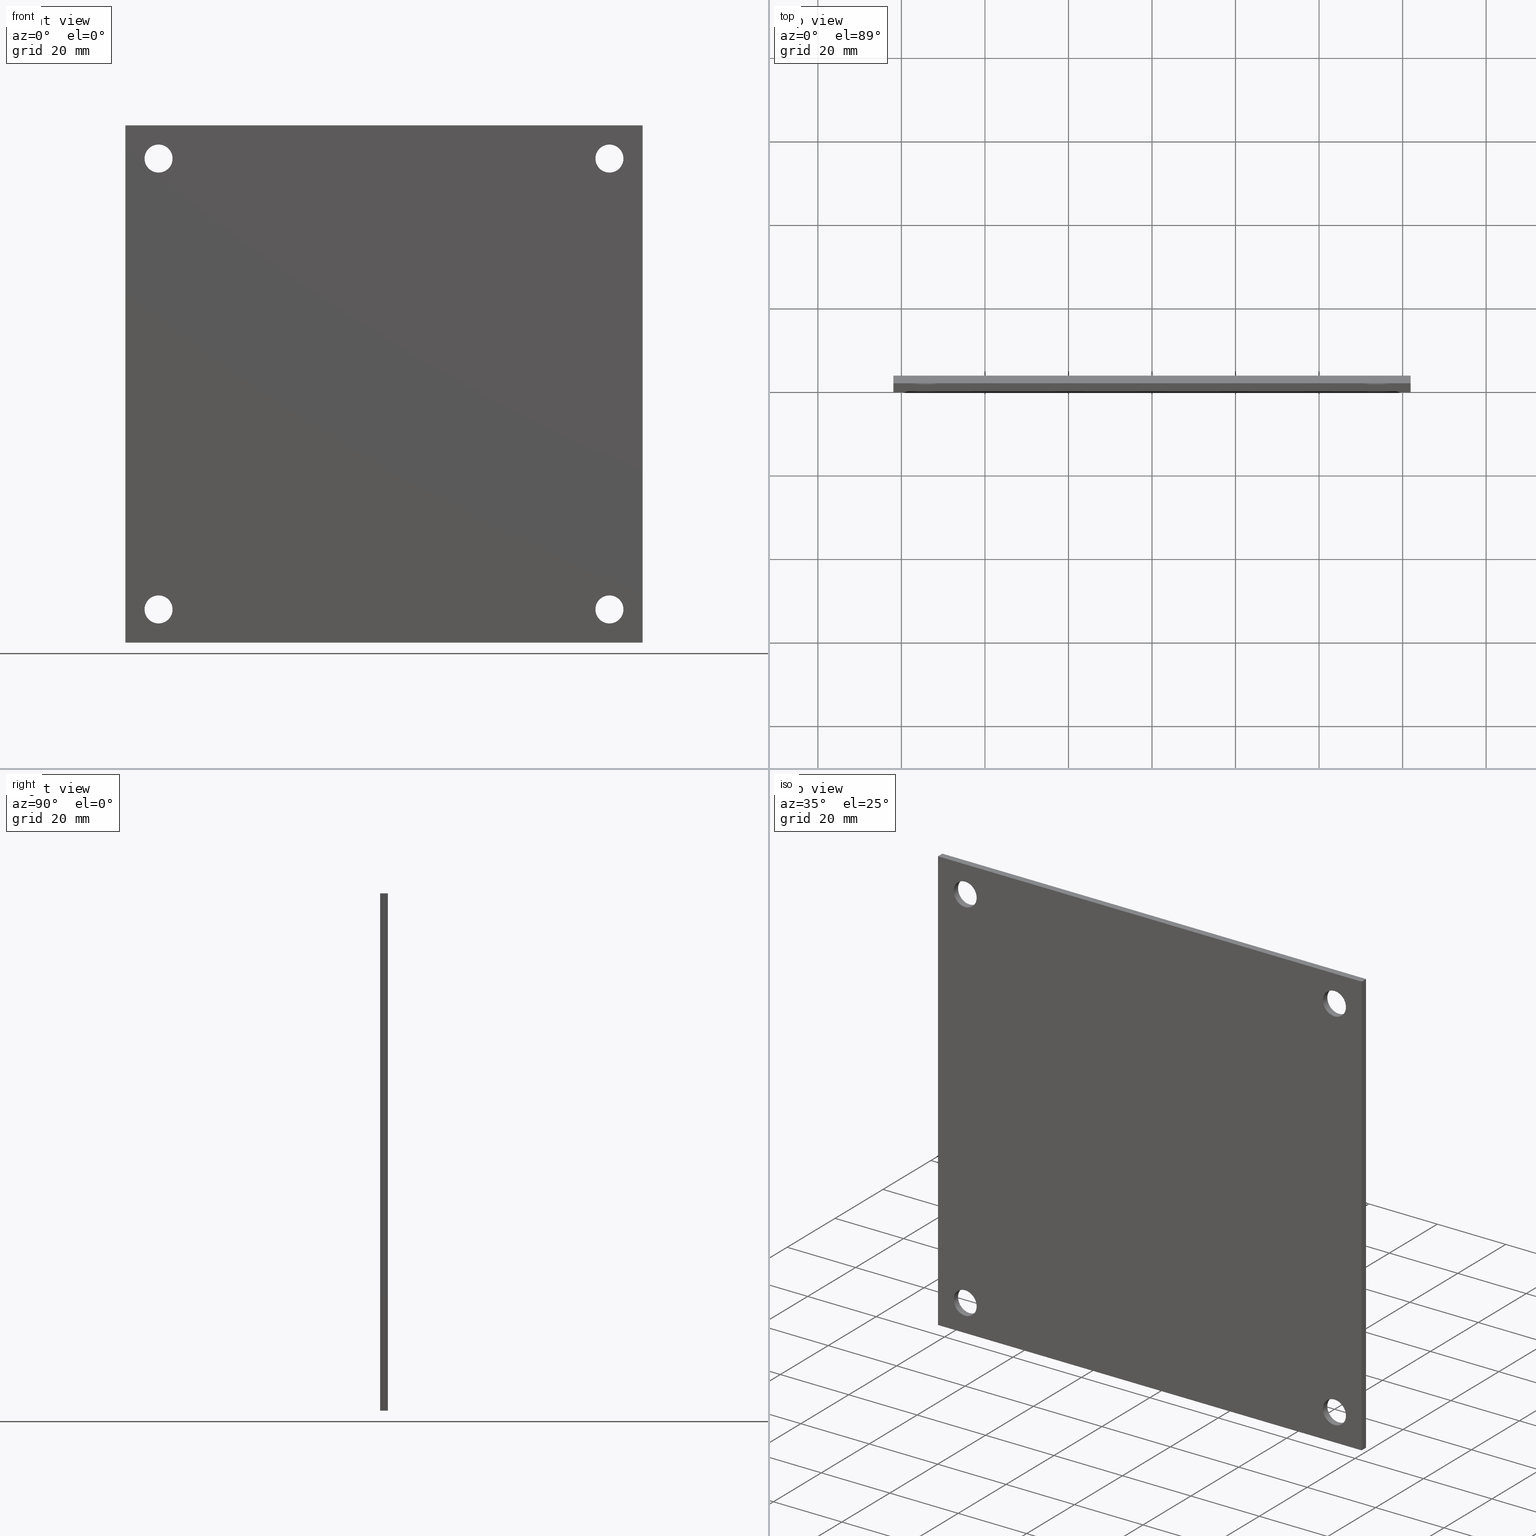
[diagram: canonical four-view strip — front | top / right | iso, engineering-drawing reading convention]
A machine part, canonical four-view strip (front | top / right | iso — engineering-drawing reading convention). The complete STEP part file that produces these views, byte-faithful:
ISO-10303-21;
HEADER;
FILE_DESCRIPTION (( 'STEP AP214' ),
    '1' );
FILE_NAME ('14A0505.STEP',
    '2019-08-15T21:08:36',
    ( '' ),
    ( '' ),
    'SwSTEP 2.0',
    'SolidWorks 2018',
    '' );
FILE_SCHEMA (( 'AUTOMOTIVE_DESIGN' ));
ENDSEC;

DATA;
#1 = STYLED_ITEM ( 'NONE', ( #421 ), #239 ) ;
#2 = FILL_AREA_STYLE ('',( #245 ) ) ;
#3 = DIMENSIONAL_EXPONENTS ( 1.000000000000000000, 0.0000000000000000000, 0.0000000000000000000, 0.0000000000000000000, 0.0000000000000000000, 0.0000000000000000000, 0.0000000000000000000 ) ;
#4 = LENGTH_MEASURE_WITH_UNIT ( LENGTH_MEASURE( 0.02539999999999999897 ), #138 );
#5 = LENGTH_MEASURE_WITH_UNIT ( LENGTH_MEASURE( 0.02539999999999999897 ), #326 );
#6 = ORIENTED_EDGE ( 'NONE', *, *, #110, .F. ) ;
#7 = CARTESIAN_POINT ( 'NONE',  ( 2.437500000000000000, 0.07200000000000000844, 2.437500000000000000 ) ) ;
#8 =( GEOMETRIC_REPRESENTATION_CONTEXT ( 3 ) GLOBAL_UNCERTAINTY_ASSIGNED_CONTEXT ( ( #154 ) ) GLOBAL_UNIT_ASSIGNED_CONTEXT ( ( #99, #55, #459 ) ) REPRESENTATION_CONTEXT ( 'NONE', 'WORKASPACE' ) );
#9 = SURFACE_STYLE_USAGE ( .BOTH. , #453 ) ;
#10 = FACE_BOUND ( 'NONE', #150, .T. ) ;
#11 = ORIENTED_EDGE ( 'NONE', *, *, #414, .T. ) ;
#12 =( GEOMETRIC_REPRESENTATION_CONTEXT ( 3 ) GLOBAL_UNCERTAINTY_ASSIGNED_CONTEXT ( ( #54 ) ) GLOBAL_UNIT_ASSIGNED_CONTEXT ( ( #419, #101, #502 ) ) REPRESENTATION_CONTEXT ( 'NONE', 'WORKASPACE' ) );
#13 = DIRECTION ( 'NONE',  ( -0.0000000000000000000, -0.0000000000000000000, -1.000000000000000000 ) ) ;
#14 = EDGE_CURVE ( 'NONE', #444, #444, #276, .T. ) ;
#15 = FACE_BOUND ( 'NONE', #131, .T. ) ;
#16 = SURFACE_STYLE_USAGE ( .BOTH. , #139 ) ;
#17 = ORIENTED_EDGE ( 'NONE', *, *, #110, .T. ) ;
#18 = FILL_AREA_STYLE ('',( #296 ) ) ;
#19 = PRODUCT_DEFINITION_SHAPE ( 'NONE', 'NONE',  #386 ) ;
#20 = DIRECTION ( 'NONE',  ( 0.0000000000000000000, 0.0000000000000000000, 1.000000000000000000 ) ) ;
#21 = SHAPE_DEFINITION_REPRESENTATION ( #19, #175 ) ;
#22 =( CONVERSION_BASED_UNIT ( 'INCH', #310 ) LENGTH_UNIT ( ) NAMED_UNIT ( #527 ) );
#23 = PRODUCT_RELATED_PRODUCT_CATEGORY ( 'part', '', ( #47 ) ) ;
#24 = CARTESIAN_POINT ( 'NONE',  ( -2.125000000000000000, 0.07199999999999967537, -2.125000000000000000 ) ) ;
#25 = EDGE_CURVE ( 'NONE', #456, #456, #75, .T. ) ;
#26 = DIRECTION ( 'NONE',  ( 0.0000000000000000000, 0.0000000000000000000, 1.000000000000000000 ) ) ;
#27 = FILL_AREA_STYLE_COLOUR ( '', #234 ) ;
#28 =( GEOMETRIC_REPRESENTATION_CONTEXT ( 3 ) GLOBAL_UNCERTAINTY_ASSIGNED_CONTEXT ( ( #332 ) ) GLOBAL_UNIT_ASSIGNED_CONTEXT ( ( #448, #248, #251 ) ) REPRESENTATION_CONTEXT ( 'NONE', 'WORKASPACE' ) );
#29 = ORIENTED_EDGE ( 'NONE', *, *, #225, .F. ) ;
#30 = DIRECTION ( 'NONE',  ( 0.0000000000000000000, -1.000000000000000000, 0.0000000000000000000 ) ) ;
#31 = AXIS2_PLACEMENT_3D ( 'NONE', #509, #153, #26 ) ;
#32 = PRODUCT_CONTEXT ( 'NONE', #396, 'mechanical' ) ;
#33 = VECTOR ( 'NONE', #426, 39.37007874015748143 ) ;
#34 = DIMENSIONAL_EXPONENTS ( 1.000000000000000000, 0.0000000000000000000, 0.0000000000000000000, 0.0000000000000000000, 0.0000000000000000000, 0.0000000000000000000, 0.0000000000000000000 ) ;
#35 = EDGE_CURVE ( 'NONE', #79, #79, #363, .T. ) ;
#36 = PRESENTATION_STYLE_ASSIGNMENT (( #137 ) ) ;
#37 = COLOUR_RGB ( '',0.7921568627450980005, 0.8196078431372548767, 0.9333333333333333481 ) ;
#38 = ORIENTED_EDGE ( 'NONE', *, *, #190, .T. ) ;
#39 =( NAMED_UNIT ( * ) SI_UNIT ( $, .STERADIAN. ) SOLID_ANGLE_UNIT ( ) );
#40 = AXIS2_PLACEMENT_3D ( 'NONE', #179, #505, #20 ) ;
#41 = DIMENSIONAL_EXPONENTS ( 1.000000000000000000, 0.0000000000000000000, 0.0000000000000000000, 0.0000000000000000000, 0.0000000000000000000, 0.0000000000000000000, 0.0000000000000000000 ) ;
#42 = FACE_BOUND ( 'NONE', #164, .T. ) ;
#43 = SURFACE_STYLE_FILL_AREA ( #218 ) ;
#44 = CARTESIAN_POINT ( 'NONE',  ( 2.437500000000000000, 0.07200000000000000844, -2.437500000000000444 ) ) ;
#45 = EDGE_LOOP ( 'NONE', ( #189 ) ) ;
#46 = FILL_AREA_STYLE_COLOUR ( '', #372 ) ;
#47 = PRODUCT ( '14A0505', '14A0505', '', ( #32 ) ) ;
#48 = FACE_OUTER_BOUND ( 'NONE', #163, .T. ) ;
#49 = ORIENTED_EDGE ( 'NONE', *, *, #368, .F. ) ;
#50 = ORIENTED_EDGE ( 'NONE', *, *, #70, .F. ) ;
#51 = DIRECTION ( 'NONE',  ( -0.0000000000000000000, 1.000000000000000000, -0.0000000000000000000 ) ) ;
#52 = CARTESIAN_POINT ( 'NONE',  ( -2.125000000000000000, 0.0000000000000000000, -2.125000000000000000 ) ) ;
#53 = EDGE_CURVE ( 'NONE', #478, #478, #321, .T. ) ;
#54 = UNCERTAINTY_MEASURE_WITH_UNIT (LENGTH_MEASURE( 1.000000000000000082E-05 ), #419, 'distance_accuracy_value', 'NONE');
#55 =( NAMED_UNIT ( * ) PLANE_ANGLE_UNIT ( ) SI_UNIT ( $, .RADIAN. ) );
#56 = LENGTH_MEASURE_WITH_UNIT ( LENGTH_MEASURE( 0.02539999999999999897 ), #337 );
#57 = CARTESIAN_POINT ( 'NONE',  ( -2.437500000000000000, 0.07200000000000000844, -2.437500000000000000 ) ) ;
#58 = MECHANICAL_DESIGN_GEOMETRIC_PRESENTATION_REPRESENTATION (  '', ( #184 ), #518 ) ;
#59 = CARTESIAN_POINT ( 'NONE',  ( 2.437500000000000000, 0.0000000000000000000, 2.437500000000000000 ) ) ;
#60 = FACE_OUTER_BOUND ( 'NONE', #458, .T. ) ;
#61 = PLANE ( 'NONE',  #180 ) ;
#62 = VERTEX_POINT ( 'NONE', #473 ) ;
#63 = DIRECTION ( 'NONE',  ( -0.0000000000000000000, 1.000000000000000000, -0.0000000000000000000 ) ) ;
#64 = MECHANICAL_DESIGN_GEOMETRIC_PRESENTATION_REPRESENTATION (  '', ( #196 ), #503 ) ;
#65 = FACE_BOUND ( 'NONE', #498, .T. ) ;
#66 = VERTEX_POINT ( 'NONE', #69 ) ;
#67 = EDGE_LOOP ( 'NONE', ( #83, #182, #201, #492 ) ) ;
#68 = CARTESIAN_POINT ( 'NONE',  ( -2.125000000000000000, 6.894667069554566652, -2.125000000000000000 ) ) ;
#69 = CARTESIAN_POINT ( 'NONE',  ( 2.437500000000000000, 0.07200000000000000844, 2.437500000000000000 ) ) ;
#70 = EDGE_CURVE ( 'NONE', #322, #151, #250, .T. ) ;
#71 = CARTESIAN_POINT ( 'NONE',  ( 2.125000000000000000, 6.894667069554566652, 2.125000000000000000 ) ) ;
#72 = VERTEX_POINT ( 'NONE', #520 ) ;
#73 = LINE ( 'NONE', #327, #258 ) ;
#74 = CARTESIAN_POINT ( 'NONE',  ( 2.125000000000000000, 0.0000000000000000000, 2.125000000000000000 ) ) ;
#75 = CIRCLE ( 'NONE', #481, 0.1325000000000000344 ) ;
#76 = ADVANCED_FACE ( 'NONE', ( #440, #158 ), #227, .F. ) ;
#77 = UNCERTAINTY_MEASURE_WITH_UNIT (LENGTH_MEASURE( 1.000000000000000082E-05 ), #413, 'distance_accuracy_value', 'NONE');
#78 = PRESENTATION_LAYER_ASSIGNMENT (  '', '', ( #483 ) ) ;
#79 = VERTEX_POINT ( 'NONE', #343 ) ;
#80 = FACE_OUTER_BOUND ( 'NONE', #236, .T. ) ;
#81 = LENGTH_MEASURE_WITH_UNIT ( LENGTH_MEASURE( 0.02539999999999999897 ), #417 );
#82 = ADVANCED_FACE ( 'NONE', ( #103, #60 ), #125, .F. ) ;
#83 = ORIENTED_EDGE ( 'NONE', *, *, #199, .T. ) ;
#84 = SURFACE_SIDE_STYLE ('',( #452 ) ) ;
#85 = CARTESIAN_POINT ( 'NONE',  ( 2.437500000000000000, 0.0000000000000000000, -2.437500000000000000 ) ) ;
#86 = DIMENSIONAL_EXPONENTS ( 1.000000000000000000, 0.0000000000000000000, 0.0000000000000000000, 0.0000000000000000000, 0.0000000000000000000, 0.0000000000000000000, 0.0000000000000000000 ) ;
#87 = AXIS2_PLACEMENT_3D ( 'NONE', #7, #176, #210 ) ;
#88 = DIRECTION ( 'NONE',  ( 0.0000000000000000000, -0.0000000000000000000, -1.000000000000000000 ) ) ;
#89 = CARTESIAN_POINT ( 'NONE',  ( 2.437500000000000000, 0.07200000000000000844, 2.437500000000000000 ) ) ;
#90 = LINE ( 'NONE', #85, #371 ) ;
#91 =( GEOMETRIC_REPRESENTATION_CONTEXT ( 3 ) GLOBAL_UNCERTAINTY_ASSIGNED_CONTEXT ( ( #112 ) ) GLOBAL_UNIT_ASSIGNED_CONTEXT ( ( #347, #111, #390 ) ) REPRESENTATION_CONTEXT ( 'NONE', 'WORKASPACE' ) );
#92 = DIRECTION ( 'NONE',  ( -1.120758151246879986E-16, 0.0000000000000000000, -1.000000000000000000 ) ) ;
#93 = CARTESIAN_POINT ( 'NONE',  ( -2.437500000000000000, 0.07200000000000000844, 2.437500000000000000 ) ) ;
#94 = CARTESIAN_POINT ( 'NONE',  ( -2.437500000000000000, 0.0000000000000000000, -2.437500000000000000 ) ) ;
#95 = VECTOR ( 'NONE', #177, 39.37007874015748143 ) ;
#96 = CARTESIAN_POINT ( 'NONE',  ( -2.125000000000000000, 6.894667069554566652, 2.125000000000000000 ) ) ;
#97 = EDGE_LOOP ( 'NONE', ( #469 ) ) ;
#98 = DIRECTION ( 'NONE',  ( -0.0000000000000000000, 1.000000000000000000, -0.0000000000000000000 ) ) ;
#99 =( CONVERSION_BASED_UNIT ( 'INCH', #56 ) LENGTH_UNIT ( ) NAMED_UNIT ( #41 ) );
#100 =( GEOMETRIC_REPRESENTATION_CONTEXT ( 3 ) GLOBAL_UNCERTAINTY_ASSIGNED_CONTEXT ( ( #425 ) ) GLOBAL_UNIT_ASSIGNED_CONTEXT ( ( #359, #168, #403 ) ) REPRESENTATION_CONTEXT ( 'NONE', 'WORKASPACE' ) );
#101 =( NAMED_UNIT ( * ) PLANE_ANGLE_UNIT ( ) SI_UNIT ( $, .RADIAN. ) );
#102 = FACE_OUTER_BOUND ( 'NONE', #407, .T. ) ;
#103 = FACE_OUTER_BOUND ( 'NONE', #466, .T. ) ;
#104 = CARTESIAN_POINT ( 'NONE',  ( -2.437500000000000000, 0.07200000000000000844, 2.437499999999999556 ) ) ;
#105 =( NAMED_UNIT ( * ) SI_UNIT ( $, .STERADIAN. ) SOLID_ANGLE_UNIT ( ) );
#106 =( LENGTH_UNIT ( ) NAMED_UNIT ( * ) SI_UNIT ( $, .METRE. ) );
#107 = STYLED_ITEM ( 'NONE', ( #522 ), #519 ) ;
#108 = CIRCLE ( 'NONE', #31, 0.1325000000000000344 ) ;
#109 =( CONVERSION_BASED_UNIT ( 'INCH', #318 ) LENGTH_UNIT ( ) NAMED_UNIT ( #123 ) );
#110 = EDGE_CURVE ( 'NONE', #485, #322, #515, .T. ) ;
#111 =( NAMED_UNIT ( * ) PLANE_ANGLE_UNIT ( ) SI_UNIT ( $, .RADIAN. ) );
#112 = UNCERTAINTY_MEASURE_WITH_UNIT (LENGTH_MEASURE( 1.000000000000000082E-05 ), #347, 'distance_accuracy_value', 'NONE');
#113 = CARTESIAN_POINT ( 'NONE',  ( 0.0000000000000000000, 0.0000000000000000000, 0.0000000000000000000 ) ) ;
#114 = APPLICATION_PROTOCOL_DEFINITION ( 'draft international standard', 'automotive_design', 1998, #396 ) ;
#115 =( GEOMETRIC_REPRESENTATION_CONTEXT ( 3 ) GLOBAL_UNCERTAINTY_ASSIGNED_CONTEXT ( ( #224 ) ) GLOBAL_UNIT_ASSIGNED_CONTEXT ( ( #455, #216, #499 ) ) REPRESENTATION_CONTEXT ( 'NONE', 'WORKASPACE' ) );
#116 = EDGE_LOOP ( 'NONE', ( #215 ) ) ;
#117 =( NAMED_UNIT ( * ) SI_UNIT ( $, .STERADIAN. ) SOLID_ANGLE_UNIT ( ) );
#118 = CARTESIAN_POINT ( 'NONE',  ( 2.125000000000000000, 0.07199999999999967537, -2.125000000000000000 ) ) ;
#119 = AXIS2_PLACEMENT_3D ( 'NONE', #52, #51, #172 ) ;
#120 = CARTESIAN_POINT ( 'NONE',  ( -2.125000000000000000, 0.07199999999999967537, 2.125000000000000000 ) ) ;
#121 = DIRECTION ( 'NONE',  ( 1.000000000000000000, 0.0000000000000000000, 0.0000000000000000000 ) ) ;
#122 = FACE_OUTER_BOUND ( 'NONE', #256, .T. ) ;
#123 = DIMENSIONAL_EXPONENTS ( 1.000000000000000000, 0.0000000000000000000, 0.0000000000000000000, 0.0000000000000000000, 0.0000000000000000000, 0.0000000000000000000, 0.0000000000000000000 ) ;
#124 = APPLICATION_CONTEXT ( 'automotive_design' ) ;
#125 = CYLINDRICAL_SURFACE ( 'NONE', #423, 0.1325000000000000344 ) ;
#126 =( LENGTH_UNIT ( ) NAMED_UNIT ( * ) SI_UNIT ( $, .METRE. ) );
#127 = DIMENSIONAL_EXPONENTS ( 1.000000000000000000, 0.0000000000000000000, 0.0000000000000000000, 0.0000000000000000000, 0.0000000000000000000, 0.0000000000000000000, 0.0000000000000000000 ) ;
#128 = PRESENTATION_LAYER_ASSIGNMENT (  '', '', ( #494 ) ) ;
#129 = ADVANCED_FACE ( 'NONE', ( #319 ), #489, .T. ) ;
#130 = AXIS2_PLACEMENT_3D ( 'NONE', #71, #268, #521 ) ;
#131 = EDGE_LOOP ( 'NONE', ( #441 ) ) ;
#132 = PLANE ( 'NONE',  #405 ) ;
#133 = PLANE ( 'NONE',  #87 ) ;
#134 = LENGTH_MEASURE_WITH_UNIT ( LENGTH_MEASURE( 0.02539999999999999897 ), #493 );
#135 = PRESENTATION_LAYER_ASSIGNMENT (  '', '', ( #355 ) ) ;
#136 = ORIENTED_EDGE ( 'NONE', *, *, #341, .F. ) ;
#137 = SURFACE_STYLE_USAGE ( .BOTH. , #293 ) ;
#138 =( LENGTH_UNIT ( ) NAMED_UNIT ( * ) SI_UNIT ( $, .METRE. ) );
#139 = SURFACE_SIDE_STYLE ('',( #290 ) ) ;
#140 = COLOUR_RGB ( '',0.7921568627450980005, 0.8196078431372548767, 0.9333333333333333481 ) ;
#141 = FACE_BOUND ( 'NONE', #191, .T. ) ;
#142 = LINE ( 'NONE', #490, #457 ) ;
#143 = CARTESIAN_POINT ( 'NONE',  ( -2.437500000000000000, 0.07200000000000000844, 2.437500000000000000 ) ) ;
#144 = UNCERTAINTY_MEASURE_WITH_UNIT (LENGTH_MEASURE( 1.000000000000000082E-05 ), #270, 'distance_accuracy_value', 'NONE');
#145 = FILL_AREA_STYLE ('',( #298 ) ) ;
#146 = MECHANICAL_DESIGN_GEOMETRIC_PRESENTATION_REPRESENTATION (  '', ( #483 ), #8 ) ;
#147 = CYLINDRICAL_SURFACE ( 'NONE', #395, 0.1325000000000000344 ) ;
#148 = SURFACE_STYLE_USAGE ( .BOTH. , #432 ) ;
#149 = LINE ( 'NONE', #381, #188 ) ;
#150 = EDGE_LOOP ( 'NONE', ( #181 ) ) ;
#151 = VERTEX_POINT ( 'NONE', #44 ) ;
#152 = DIRECTION ( 'NONE',  ( 0.0000000000000000000, -0.0000000000000000000, -1.000000000000000000 ) ) ;
#153 = DIRECTION ( 'NONE',  ( -0.0000000000000000000, 1.000000000000000000, -0.0000000000000000000 ) ) ;
#154 = UNCERTAINTY_MEASURE_WITH_UNIT (LENGTH_MEASURE( 1.000000000000000082E-05 ), #99, 'distance_accuracy_value', 'NONE');
#155 = MECHANICAL_DESIGN_GEOMETRIC_PRESENTATION_REPRESENTATION (  '', ( #494 ), #12 ) ;
#156 = LENGTH_MEASURE_WITH_UNIT ( LENGTH_MEASURE( 0.02539999999999999897 ), #235 );
#157 = DIRECTION ( 'NONE',  ( 0.0000000000000000000, 0.0000000000000000000, 1.000000000000000000 ) ) ;
#158 = FACE_OUTER_BOUND ( 'NONE', #283, .T. ) ;
#159 =( GEOMETRIC_REPRESENTATION_CONTEXT ( 3 ) GLOBAL_UNCERTAINTY_ASSIGNED_CONTEXT ( ( #349 ) ) GLOBAL_UNIT_ASSIGNED_CONTEXT ( ( #240, #203, #487 ) ) REPRESENTATION_CONTEXT ( 'NONE', 'WORKASPACE' ) );
#160 =( LENGTH_UNIT ( ) NAMED_UNIT ( * ) SI_UNIT ( $, .METRE. ) );
#161 =( NAMED_UNIT ( * ) PLANE_ANGLE_UNIT ( ) SI_UNIT ( $, .RADIAN. ) );
#162 = VECTOR ( 'NONE', #449, 39.37007874015748143 ) ;
#163 = EDGE_LOOP ( 'NONE', ( #504 ) ) ;
#164 = EDGE_LOOP ( 'NONE', ( #209 ) ) ;
#165 = CARTESIAN_POINT ( 'NONE',  ( -2.437500000000000000, 0.07200000000000000844, -2.437500000000000000 ) ) ;
#166 = STYLED_ITEM ( 'NONE', ( #36 ), #282 ) ;
#167 = COLOUR_RGB ( '',0.7921568627450980005, 0.8196078431372548767, 0.9333333333333333481 ) ;
#168 =( NAMED_UNIT ( * ) PLANE_ANGLE_UNIT ( ) SI_UNIT ( $, .RADIAN. ) );
#169 = DIMENSIONAL_EXPONENTS ( 1.000000000000000000, 0.0000000000000000000, 0.0000000000000000000, 0.0000000000000000000, 0.0000000000000000000, 0.0000000000000000000, 0.0000000000000000000 ) ;
#170 = ORIENTED_EDGE ( 'NONE', *, *, #278, .F. ) ;
#171 = EDGE_LOOP ( 'NONE', ( #284 ) ) ;
#172 = DIRECTION ( 'NONE',  ( 0.0000000000000000000, 0.0000000000000000000, 1.000000000000000000 ) ) ;
#173 = SURFACE_STYLE_FILL_AREA ( #374 ) ;
#174 = DIRECTION ( 'NONE',  ( -1.000000000000000000, 0.0000000000000000000, 1.120758151246879986E-16 ) ) ;
#175 = ADVANCED_BREP_SHAPE_REPRESENTATION ( '14A0505', ( #239, #329 ), #418 ) ;
#176 = DIRECTION ( 'NONE',  ( -1.120758151246879986E-16, 0.0000000000000000000, 1.000000000000000000 ) ) ;
#177 = DIRECTION ( 'NONE',  ( -1.000000000000000000, -0.0000000000000000000, -0.0000000000000000000 ) ) ;
#178 = VECTOR ( 'NONE', #301, 39.37007874015748143 ) ;
#179 = CARTESIAN_POINT ( 'NONE',  ( 2.125000000000000000, 0.0000000000000000000, -2.125000000000000000 ) ) ;
#180 = AXIS2_PLACEMENT_3D ( 'NONE', #428, #222, #307 ) ;
#181 = ORIENTED_EDGE ( 'NONE', *, *, #476, .T. ) ;
#182 = ORIENTED_EDGE ( 'NONE', *, *, #414, .F. ) ;
#183 = DIRECTION ( 'NONE',  ( 0.0000000000000000000, 0.0000000000000000000, -1.000000000000000000 ) ) ;
#184 = STYLED_ITEM ( 'NONE', ( #408 ), #129 ) ;
#185 =( LENGTH_UNIT ( ) NAMED_UNIT ( * ) SI_UNIT ( $, .METRE. ) );
#186 = MECHANICAL_DESIGN_GEOMETRIC_PRESENTATION_REPRESENTATION (  '', ( #166 ), #445 ) ;
#187 = DIRECTION ( 'NONE',  ( 0.0000000000000000000, 0.0000000000000000000, 1.000000000000000000 ) ) ;
#188 = VECTOR ( 'NONE', #13, 39.37007874015748143 ) ;
#189 = ORIENTED_EDGE ( 'NONE', *, *, #14, .T. ) ;
#190 = EDGE_CURVE ( 'NONE', #409, #352, #90, .T. ) ;
#191 = EDGE_LOOP ( 'NONE', ( #269 ) ) ;
#192 = CARTESIAN_POINT ( 'NONE',  ( -2.437500000000000000, 0.0000000000000000000, -2.437500000000000000 ) ) ;
#193 = DIRECTION ( 'NONE',  ( 0.0000000000000000000, -1.000000000000000000, 0.0000000000000000000 ) ) ;
#194 = DIRECTION ( 'NONE',  ( 0.0000000000000000000, -1.000000000000000000, 0.0000000000000000000 ) ) ;
#195 = FILL_AREA_STYLE ('',( #404 ) ) ;
#196 = STYLED_ITEM ( 'NONE', ( #389 ), #475 ) ;
#197 = DIMENSIONAL_EXPONENTS ( 1.000000000000000000, 0.0000000000000000000, 0.0000000000000000000, 0.0000000000000000000, 0.0000000000000000000, 0.0000000000000000000, 0.0000000000000000000 ) ;
#198 = DIRECTION ( 'NONE',  ( 0.0000000000000000000, 0.0000000000000000000, 1.000000000000000000 ) ) ;
#199 = EDGE_CURVE ( 'NONE', #151, #66, #73, .T. ) ;
#200 = FILL_AREA_STYLE ('',( #46 ) ) ;
#201 = ORIENTED_EDGE ( 'NONE', *, *, #190, .F. ) ;
#202 = DIMENSIONAL_EXPONENTS ( 1.000000000000000000, 0.0000000000000000000, 0.0000000000000000000, 0.0000000000000000000, 0.0000000000000000000, 0.0000000000000000000, 0.0000000000000000000 ) ;
#203 =( NAMED_UNIT ( * ) PLANE_ANGLE_UNIT ( ) SI_UNIT ( $, .RADIAN. ) );
#204 = CARTESIAN_POINT ( 'NONE',  ( 2.125000000000000000, 6.894667069554566652, -2.125000000000000000 ) ) ;
#205 = DIMENSIONAL_EXPONENTS ( 1.000000000000000000, 0.0000000000000000000, 0.0000000000000000000, 0.0000000000000000000, 0.0000000000000000000, 0.0000000000000000000, 0.0000000000000000000 ) ;
#206 = FACE_OUTER_BOUND ( 'NONE', #526, .T. ) ;
#207 = FACE_OUTER_BOUND ( 'NONE', #116, .T. ) ;
#208 = LINE ( 'NONE', #94, #162 ) ;
#209 = ORIENTED_EDGE ( 'NONE', *, *, #35, .T. ) ;
#210 = DIRECTION ( 'NONE',  ( 1.000000000000000000, 0.0000000000000000000, 1.120758151246879986E-16 ) ) ;
#211 = DIRECTION ( 'NONE',  ( -1.000000000000000000, -0.0000000000000000000, -1.120758151246879986E-16 ) ) ;
#212 = MECHANICAL_DESIGN_GEOMETRIC_PRESENTATION_REPRESENTATION (  '', ( #1 ), #28 ) ;
#213 = COLOUR_RGB ( '',0.7921568627450980005, 0.8196078431372548767, 0.9333333333333333481 ) ;
#214 =( NAMED_UNIT ( * ) PLANE_ANGLE_UNIT ( ) SI_UNIT ( $, .RADIAN. ) );
#215 = ORIENTED_EDGE ( 'NONE', *, *, #497, .F. ) ;
#216 =( NAMED_UNIT ( * ) PLANE_ANGLE_UNIT ( ) SI_UNIT ( $, .RADIAN. ) );
#217 = EDGE_CURVE ( 'NONE', #289, #289, #304, .T. ) ;
#218 = FILL_AREA_STYLE ('',( #340 ) ) ;
#219 = PLANE ( 'NONE',  #254 ) ;
#220 = ORIENTED_EDGE ( 'NONE', *, *, #199, .F. ) ;
#221 = SURFACE_SIDE_STYLE ('',( #461 ) ) ;
#222 = DIRECTION ( 'NONE',  ( 0.0000000000000000000, -1.000000000000000000, 0.0000000000000000000 ) ) ;
#223 = VERTEX_POINT ( 'NONE', #523 ) ;
#224 = UNCERTAINTY_MEASURE_WITH_UNIT (LENGTH_MEASURE( 1.000000000000000082E-05 ), #455, 'distance_accuracy_value', 'NONE');
#225 = EDGE_CURVE ( 'NONE', #485, #409, #208, .T. ) ;
#226 = SURFACE_STYLE_USAGE ( .BOTH. , #348 ) ;
#227 = CYLINDRICAL_SURFACE ( 'NONE', #130, 0.1325000000000000344 ) ;
#228 = DIRECTION ( 'NONE',  ( 0.0000000000000000000, -1.000000000000000000, 0.0000000000000000000 ) ) ;
#229 = CARTESIAN_POINT ( 'NONE',  ( 2.437500000000000000, 0.0000000000000000000, -2.437500000000000444 ) ) ;
#230 = MECHANICAL_DESIGN_GEOMETRIC_PRESENTATION_REPRESENTATION (  '', ( #355 ), #335 ) ;
#231 = DIRECTION ( 'NONE',  ( 0.0000000000000000000, -1.000000000000000000, 0.0000000000000000000 ) ) ;
#232 = MECHANICAL_DESIGN_GEOMETRIC_PRESENTATION_REPRESENTATION (  '', ( #511 ), #159 ) ;
#233 = VERTEX_POINT ( 'NONE', #93 ) ;
#234 = COLOUR_RGB ( '',0.7921568627450980005, 0.8196078431372548767, 0.9333333333333333481 ) ;
#235 =( LENGTH_UNIT ( ) NAMED_UNIT ( * ) SI_UNIT ( $, .METRE. ) );
#236 = EDGE_LOOP ( 'NONE', ( #306 ) ) ;
#237 = ORIENTED_EDGE ( 'NONE', *, *, #225, .T. ) ;
#238 = MECHANICAL_DESIGN_GEOMETRIC_PRESENTATION_REPRESENTATION (  '', ( #285 ), #115 ) ;
#239 = MANIFOLD_SOLID_BREP ( 'COM42864-1-solid1', #393 ) ;
#240 =( CONVERSION_BASED_UNIT ( 'INCH', #305 ) LENGTH_UNIT ( ) NAMED_UNIT ( #127 ) );
#241 = EDGE_CURVE ( 'NONE', #352, #437, #274, .T. ) ;
#242 = LENGTH_MEASURE_WITH_UNIT ( LENGTH_MEASURE( 0.02539999999999999897 ), #427 );
#243 = SURFACE_STYLE_FILL_AREA ( #2 ) ;
#244 = ORIENTED_EDGE ( 'NONE', *, *, #288, .F. ) ;
#245 = FILL_AREA_STYLE_COLOUR ( '', #415 ) ;
#246 =( LENGTH_UNIT ( ) NAMED_UNIT ( * ) SI_UNIT ( $, .METRE. ) );
#247 = MECHANICAL_DESIGN_GEOMETRIC_PRESENTATION_REPRESENTATION (  '', ( #501 ), #275 ) ;
#248 =( NAMED_UNIT ( * ) PLANE_ANGLE_UNIT ( ) SI_UNIT ( $, .RADIAN. ) );
#249 = SURFACE_STYLE_FILL_AREA ( #447 ) ;
#250 = LINE ( 'NONE', #392, #255 ) ;
#251 =( NAMED_UNIT ( * ) SI_UNIT ( $, .STERADIAN. ) SOLID_ANGLE_UNIT ( ) );
#252 = EDGE_CURVE ( 'NONE', #437, #485, #142, .T. ) ;
#253 = DIRECTION ( 'NONE',  ( -1.000000000000000000, 0.0000000000000000000, 0.0000000000000000000 ) ) ;
#254 = AXIS2_PLACEMENT_3D ( 'NONE', #143, #253, #460 ) ;
#255 = VECTOR ( 'NONE', #353, 39.37007874015748143 ) ;
#256 = EDGE_LOOP ( 'NONE', ( #299 ) ) ;
#257 = COLOUR_RGB ( '',0.7921568627450980005, 0.8196078431372548767, 0.9333333333333333481 ) ;
#258 = VECTOR ( 'NONE', #331, 39.37007874015748143 ) ;
#259 = SURFACE_STYLE_USAGE ( .BOTH. , #261 ) ;
#260 = AXIS2_PLACEMENT_3D ( 'NONE', #96, #98, #187 ) ;
#261 = SURFACE_SIDE_STYLE ('',( #451 ) ) ;
#262 = PRESENTATION_STYLE_ASSIGNMENT (( #358 ) ) ;
#263 = COLOUR_RGB ( '',0.7921568627450980005, 0.8196078431372548767, 0.9333333333333333481 ) ;
#264 = AXIS2_PLACEMENT_3D ( 'NONE', #120, #30, #510 ) ;
#265 = PRESENTATION_STYLE_ASSIGNMENT (( #422 ) ) ;
#266 = FILL_AREA_STYLE_COLOUR ( '', #263 ) ;
#267 = ORIENTED_EDGE ( 'NONE', *, *, #53, .F. ) ;
#268 = DIRECTION ( 'NONE',  ( -0.0000000000000000000, 1.000000000000000000, -0.0000000000000000000 ) ) ;
#269 = ORIENTED_EDGE ( 'NONE', *, *, #53, .T. ) ;
#270 =( CONVERSION_BASED_UNIT ( 'INCH', #272 ) LENGTH_UNIT ( ) NAMED_UNIT ( #366 ) );
#271 = SURFACE_SIDE_STYLE ('',( #491 ) ) ;
#272 = LENGTH_MEASURE_WITH_UNIT ( LENGTH_MEASURE( 0.02539999999999999897 ), #160 );
#273 = LINE ( 'NONE', #367, #33 ) ;
#274 = LINE ( 'NONE', #412, #95 ) ;
#275 =( GEOMETRIC_REPRESENTATION_CONTEXT ( 3 ) GLOBAL_UNCERTAINTY_ASSIGNED_CONTEXT ( ( #391 ) ) GLOBAL_UNIT_ASSIGNED_CONTEXT ( ( #436, #161, #482 ) ) REPRESENTATION_CONTEXT ( 'NONE', 'WORKASPACE' ) );
#276 = CIRCLE ( 'NONE', #398, 0.1325000000000000344 ) ;
#277 = APPLICATION_PROTOCOL_DEFINITION ( 'draft international standard', 'automotive_design', 1998, #124 ) ;
#278 = EDGE_CURVE ( 'NONE', #66, #233, #383, .T. ) ;
#279 = UNCERTAINTY_MEASURE_WITH_UNIT (LENGTH_MEASURE( 1.000000000000000082E-05 ), #22, 'distance_accuracy_value', 'NONE');
#280 = SURFACE_SIDE_STYLE ('',( #243 ) ) ;
#281 = LINE ( 'NONE', #333, #178 ) ;
#282 = ADVANCED_FACE ( 'NONE', ( #351 ), #133, .T. ) ;
#283 = EDGE_LOOP ( 'NONE', ( #470 ) ) ;
#284 = ORIENTED_EDGE ( 'NONE', *, *, #497, .T. ) ;
#285 = STYLED_ITEM ( 'NONE', ( #378 ), #400 ) ;
#286 = DIRECTION ( 'NONE',  ( -0.0000000000000000000, 1.000000000000000000, -0.0000000000000000000 ) ) ;
#287 = SURFACE_STYLE_USAGE ( .BOTH. , #280 ) ;
#288 = EDGE_CURVE ( 'NONE', #233, #322, #149, .T. ) ;
#289 = VERTEX_POINT ( 'NONE', #517 ) ;
#290 = SURFACE_STYLE_FILL_AREA ( #18 ) ;
#291 = COLOUR_RGB ( '',0.7921568627450980005, 0.8196078431372548767, 0.9333333333333333481 ) ;
#292 = PRESENTATION_LAYER_ASSIGNMENT (  '', '', ( #107 ) ) ;
#293 = SURFACE_SIDE_STYLE ('',( #173 ) ) ;
#294 = EDGE_LOOP ( 'NONE', ( #170, #220, #50, #244 ) ) ;
#295 = AXIS2_PLACEMENT_3D ( 'NONE', #118, #193, #477 ) ;
#296 = FILL_AREA_STYLE_COLOUR ( '', #167 ) ;
#297 = DIRECTION ( 'NONE',  ( 1.000000000000000000, 0.0000000000000000000, 0.0000000000000000000 ) ) ;
#298 = FILL_AREA_STYLE_COLOUR ( '', #311 ) ;
#299 = ORIENTED_EDGE ( 'NONE', *, *, #217, .F. ) ;
#300 = SURFACE_SIDE_STYLE ('',( #43 ) ) ;
#301 = DIRECTION ( 'NONE',  ( 0.0000000000000000000, 1.000000000000000000, -0.0000000000000000000 ) ) ;
#302 = CARTESIAN_POINT ( 'NONE',  ( -2.437500000000000000, 0.0000000000000000000, -2.437500000000000000 ) ) ;
#303 = FACE_OUTER_BOUND ( 'NONE', #294, .T. ) ;
#304 = CIRCLE ( 'NONE', #119, 0.1325000000000000344 ) ;
#305 = LENGTH_MEASURE_WITH_UNIT ( LENGTH_MEASURE( 0.02539999999999999897 ), #443 );
#306 = ORIENTED_EDGE ( 'NONE', *, *, #476, .F. ) ;
#307 = DIRECTION ( 'NONE',  ( 0.0000000000000000000, -0.0000000000000000000, -1.000000000000000000 ) ) ;
#308 = AXIS2_PLACEMENT_3D ( 'NONE', #302, #228, #152 ) ;
#309 = UNCERTAINTY_MEASURE_WITH_UNIT (LENGTH_MEASURE( 1.000000000000000082E-05 ), #109, 'distance_accuracy_value', 'NONE');
#310 = LENGTH_MEASURE_WITH_UNIT ( LENGTH_MEASURE( 0.02539999999999999897 ), #106 );
#311 = COLOUR_RGB ( '',0.7921568627450980005, 0.8196078431372548767, 0.9333333333333333481 ) ;
#312 = ADVANCED_FACE ( 'NONE', ( #325 ), #132, .T. ) ;
#313 =( NAMED_UNIT ( * ) PLANE_ANGLE_UNIT ( ) SI_UNIT ( $, .RADIAN. ) );
#314 = VECTOR ( 'NONE', #365, 39.37007874015748143 ) ;
#315 = CARTESIAN_POINT ( 'NONE',  ( 2.125000000000000000, 0.07199999999999967537, 2.125000000000000000 ) ) ;
#316 = DIRECTION ( 'NONE',  ( 0.0000000000000000000, 0.0000000000000000000, 1.000000000000000000 ) ) ;
#317 = UNCERTAINTY_MEASURE_WITH_UNIT (LENGTH_MEASURE( 1.000000000000000082E-05 ), #356, 'distance_accuracy_value', 'NONE');
#318 = LENGTH_MEASURE_WITH_UNIT ( LENGTH_MEASURE( 0.02539999999999999897 ), #185 );
#319 = FACE_OUTER_BOUND ( 'NONE', #344, .T. ) ;
#320 = PRESENTATION_LAYER_ASSIGNMENT (  '', '', ( #166 ) ) ;
#321 = CIRCLE ( 'NONE', #295, 0.1325000000000000344 ) ;
#322 = VERTEX_POINT ( 'NONE', #57 ) ;
#323 = FILL_AREA_STYLE ('',( #397 ) ) ;
#324 = PRESENTATION_LAYER_ASSIGNMENT (  '', '', ( #434 ) ) ;
#325 = FACE_OUTER_BOUND ( 'NONE', #67, .T. ) ;
#326 =( LENGTH_UNIT ( ) NAMED_UNIT ( * ) SI_UNIT ( $, .METRE. ) );
#327 = CARTESIAN_POINT ( 'NONE',  ( 2.437500000000000000, 0.07200000000000000844, -2.437500000000000000 ) ) ;
#328 = CARTESIAN_POINT ( 'NONE',  ( -2.437500000000000000, 0.07200000000000000844, -2.437500000000000000 ) ) ;
#329 = AXIS2_PLACEMENT_3D ( 'NONE', #113, #399, #121 ) ;
#330 = PRODUCT_DEFINITION_CONTEXT ( 'detailed design', #124, 'design' ) ;
#331 = DIRECTION ( 'NONE',  ( -0.0000000000000000000, -0.0000000000000000000, 1.000000000000000000 ) ) ;
#332 = UNCERTAINTY_MEASURE_WITH_UNIT (LENGTH_MEASURE( 1.000000000000000082E-05 ), #448, 'distance_accuracy_value', 'NONE');
#333 = CARTESIAN_POINT ( 'NONE',  ( 2.437500000000000000, 0.07200000000000000844, 2.437500000000000000 ) ) ;
#334 = CARTESIAN_POINT ( 'NONE',  ( 2.437500000000000000, 0.07200000000000000844, -2.437500000000000000 ) ) ;
#335 =( GEOMETRIC_REPRESENTATION_CONTEXT ( 3 ) GLOBAL_UNCERTAINTY_ASSIGNED_CONTEXT ( ( #309 ) ) GLOBAL_UNIT_ASSIGNED_CONTEXT ( ( #109, #388, #105 ) ) REPRESENTATION_CONTEXT ( 'NONE', 'WORKASPACE' ) );
#336 = CYLINDRICAL_SURFACE ( 'NONE', #260, 0.1325000000000000344 ) ;
#337 =( LENGTH_UNIT ( ) NAMED_UNIT ( * ) SI_UNIT ( $, .METRE. ) );
#338 = PRESENTATION_STYLE_ASSIGNMENT (( #16 ) ) ;
#339 = EDGE_LOOP ( 'NONE', ( #424 ) ) ;
#340 = FILL_AREA_STYLE_COLOUR ( '', #257 ) ;
#341 = EDGE_CURVE ( 'NONE', #409, #151, #273, .T. ) ;
#342 = CARTESIAN_POINT ( 'NONE',  ( -2.437500000000000000, 0.0000000000000000000, 2.437500000000000000 ) ) ;
#343 = CARTESIAN_POINT ( 'NONE',  ( -2.125000000000000000, 0.07199999999999967537, 2.257500000000000284 ) ) ;
#344 = EDGE_LOOP ( 'NONE', ( #500, #136, #29, #17 ) ) ;
#345 = FILL_AREA_STYLE ('',( #266 ) ) ;
#346 = PRESENTATION_LAYER_ASSIGNMENT (  '', '', ( #285 ) ) ;
#347 =( CONVERSION_BASED_UNIT ( 'INCH', #242 ) LENGTH_UNIT ( ) NAMED_UNIT ( #34 ) );
#348 = SURFACE_SIDE_STYLE ('',( #435 ) ) ;
#349 = UNCERTAINTY_MEASURE_WITH_UNIT (LENGTH_MEASURE( 1.000000000000000082E-05 ), #240, 'distance_accuracy_value', 'NONE');
#350 = LINE ( 'NONE', #104, #369 ) ;
#351 = FACE_OUTER_BOUND ( 'NONE', #379, .T. ) ;
#352 = VERTEX_POINT ( 'NONE', #59 ) ;
#353 = DIRECTION ( 'NONE',  ( 1.000000000000000000, -0.0000000000000000000, -1.120758151246879986E-16 ) ) ;
#354 = DIRECTION ( 'NONE',  ( -0.0000000000000000000, 1.000000000000000000, -0.0000000000000000000 ) ) ;
#355 = STYLED_ITEM ( 'NONE', ( #406 ), #488 ) ;
#356 =( CONVERSION_BASED_UNIT ( 'INCH', #5 ) LENGTH_UNIT ( ) NAMED_UNIT ( #205 ) );
#357 = ORIENTED_EDGE ( 'NONE', *, *, #241, .T. ) ;
#358 = SURFACE_STYLE_USAGE ( .BOTH. , #271 ) ;
#359 =( CONVERSION_BASED_UNIT ( 'INCH', #516 ) LENGTH_UNIT ( ) NAMED_UNIT ( #197 ) );
#360 = SURFACE_STYLE_USAGE ( .BOTH. , #84 ) ;
#361 = ADVANCED_FACE ( 'NONE', ( #102 ), #219, .T. ) ;
#362 = MECHANICAL_DESIGN_GEOMETRIC_PRESENTATION_REPRESENTATION (  '', ( #107 ), #91 ) ;
#363 = CIRCLE ( 'NONE', #264, 0.1325000000000000344 ) ;
#364 = ORIENTED_EDGE ( 'NONE', *, *, #380, .F. ) ;
#365 = DIRECTION ( 'NONE',  ( 0.0000000000000000000, 1.000000000000000000, 0.0000000000000000000 ) ) ;
#366 = DIMENSIONAL_EXPONENTS ( 1.000000000000000000, 0.0000000000000000000, 0.0000000000000000000, 0.0000000000000000000, 0.0000000000000000000, 0.0000000000000000000, 0.0000000000000000000 ) ;
#367 = CARTESIAN_POINT ( 'NONE',  ( 2.437500000000000000, 0.07200000000000000844, -2.437500000000000000 ) ) ;
#368 = EDGE_CURVE ( 'NONE', #233, #437, #350, .T. ) ;
#369 = VECTOR ( 'NONE', #382, 39.37007874015748143 ) ;
#370 = MECHANICAL_DESIGN_GEOMETRIC_PRESENTATION_REPRESENTATION (  '', ( #434 ), #100 ) ;
#371 = VECTOR ( 'NONE', #410, 39.37007874015748143 ) ;
#372 = COLOUR_RGB ( '',0.7921568627450980005, 0.8196078431372548767, 0.9333333333333333481 ) ;
#373 = FILL_AREA_STYLE_COLOUR ( '', #462 ) ;
#374 = FILL_AREA_STYLE ('',( #495 ) ) ;
#375 = AXIS2_PLACEMENT_3D ( 'NONE', #24, #231, #507 ) ;
#376 = SURFACE_STYLE_USAGE ( .BOTH. , #221 ) ;
#377 = FACE_BOUND ( 'NONE', #45, .T. ) ;
#378 = PRESENTATION_STYLE_ASSIGNMENT (( #376 ) ) ;
#379 = EDGE_LOOP ( 'NONE', ( #508, #431, #416, #11 ) ) ;
#380 = EDGE_CURVE ( 'NONE', #223, #223, #514, .T. ) ;
#381 = CARTESIAN_POINT ( 'NONE',  ( -2.437500000000000000, 0.07200000000000000844, 2.437500000000000000 ) ) ;
#382 = DIRECTION ( 'NONE',  ( -0.0000000000000000000, -1.000000000000000000, 0.0000000000000000000 ) ) ;
#383 = LINE ( 'NONE', #89, #524 ) ;
#384 = PRESENTATION_STYLE_ASSIGNMENT (( #360 ) ) ;
#385 = CARTESIAN_POINT ( 'NONE',  ( 2.125000000000000000, 0.07199999999999967537, -1.992500000000000160 ) ) ;
#386 = PRODUCT_DEFINITION ( 'UNKNOWN', '', #464, #330 ) ;
#387 =( NAMED_UNIT ( * ) PLANE_ANGLE_UNIT ( ) SI_UNIT ( $, .RADIAN. ) );
#388 =( NAMED_UNIT ( * ) PLANE_ANGLE_UNIT ( ) SI_UNIT ( $, .RADIAN. ) );
#389 = PRESENTATION_STYLE_ASSIGNMENT (( #148 ) ) ;
#390 =( NAMED_UNIT ( * ) SI_UNIT ( $, .STERADIAN. ) SOLID_ANGLE_UNIT ( ) );
#391 = UNCERTAINTY_MEASURE_WITH_UNIT (LENGTH_MEASURE( 1.000000000000000082E-05 ), #436, 'distance_accuracy_value', 'NONE');
#392 = CARTESIAN_POINT ( 'NONE',  ( -2.437500000000000000, 0.07200000000000000844, -2.437500000000000000 ) ) ;
#393 = CLOSED_SHELL ( 'NONE', ( #475, #282, #312, #129, #361, #519, #400, #82, #76, #488 ) ) ;
#394 = PLANE ( 'NONE',  #308 ) ;
#395 = AXIS2_PLACEMENT_3D ( 'NONE', #68, #63, #157 ) ;
#396 = APPLICATION_CONTEXT ( 'automotive_design' ) ;
#397 = FILL_AREA_STYLE_COLOUR ( '', #37 ) ;
#398 = AXIS2_PLACEMENT_3D ( 'NONE', #315, #194, #474 ) ;
#399 = DIRECTION ( 'NONE',  ( 0.0000000000000000000, 0.0000000000000000000, 1.000000000000000000 ) ) ;
#400 = ADVANCED_FACE ( 'NONE', ( #207, #48 ), #336, .F. ) ;
#401 = PRESENTATION_STYLE_ASSIGNMENT (( #484 ) ) ;
#402 = PRESENTATION_LAYER_ASSIGNMENT (  '', '', ( #511 ) ) ;
#403 =( NAMED_UNIT ( * ) SI_UNIT ( $, .STERADIAN. ) SOLID_ANGLE_UNIT ( ) );
#404 = FILL_AREA_STYLE_COLOUR ( '', #140 ) ;
#405 = AXIS2_PLACEMENT_3D ( 'NONE', #334, #297, #183 ) ;
#406 = PRESENTATION_STYLE_ASSIGNMENT (( #259 ) ) ;
#407 = EDGE_LOOP ( 'NONE', ( #446, #6, #480, #49 ) ) ;
#408 = PRESENTATION_STYLE_ASSIGNMENT (( #287 ) ) ;
#409 = VERTEX_POINT ( 'NONE', #229 ) ;
#410 = DIRECTION ( 'NONE',  ( -0.0000000000000000000, 0.0000000000000000000, 1.000000000000000000 ) ) ;
#411 = PRESENTATION_LAYER_ASSIGNMENT (  '', '', ( #501 ) ) ;
#412 = CARTESIAN_POINT ( 'NONE',  ( -2.437500000000000000, 0.0000000000000000000, 2.437500000000000000 ) ) ;
#413 =( CONVERSION_BASED_UNIT ( 'INCH', #430 ) LENGTH_UNIT ( ) NAMED_UNIT ( #169 ) );
#414 = EDGE_CURVE ( 'NONE', #352, #66, #281, .T. ) ;
#415 = COLOUR_RGB ( '',0.7921568627450980005, 0.8196078431372548767, 0.9333333333333333481 ) ;
#416 = ORIENTED_EDGE ( 'NONE', *, *, #241, .F. ) ;
#417 =( LENGTH_UNIT ( ) NAMED_UNIT ( * ) SI_UNIT ( $, .METRE. ) );
#418 =( GEOMETRIC_REPRESENTATION_CONTEXT ( 3 ) GLOBAL_UNCERTAINTY_ASSIGNED_CONTEXT ( ( #144 ) ) GLOBAL_UNIT_ASSIGNED_CONTEXT ( ( #270, #313, #117 ) ) REPRESENTATION_CONTEXT ( 'NONE', 'WORKASPACE' ) );
#419 =( CONVERSION_BASED_UNIT ( 'INCH', #81 ) LENGTH_UNIT ( ) NAMED_UNIT ( #202 ) );
#420 = FACE_BOUND ( 'NONE', #97, .T. ) ;
#421 = PRESENTATION_STYLE_ASSIGNMENT (( #9 ) ) ;
#422 = SURFACE_STYLE_USAGE ( .BOTH. , #300 ) ;
#423 = AXIS2_PLACEMENT_3D ( 'NONE', #204, #286, #198 ) ;
#424 = ORIENTED_EDGE ( 'NONE', *, *, #25, .F. ) ;
#425 = UNCERTAINTY_MEASURE_WITH_UNIT (LENGTH_MEASURE( 1.000000000000000082E-05 ), #359, 'distance_accuracy_value', 'NONE');
#426 = DIRECTION ( 'NONE',  ( -0.0000000000000000000, 1.000000000000000000, 0.0000000000000000000 ) ) ;
#427 =( LENGTH_UNIT ( ) NAMED_UNIT ( * ) SI_UNIT ( $, .METRE. ) );
#428 = CARTESIAN_POINT ( 'NONE',  ( -2.437500000000000000, 0.07200000000000000844, -2.437500000000000000 ) ) ;
#429 = SURFACE_STYLE_FILL_AREA ( #506 ) ;
#430 = LENGTH_MEASURE_WITH_UNIT ( LENGTH_MEASURE( 0.02539999999999999897 ), #246 );
#431 = ORIENTED_EDGE ( 'NONE', *, *, #368, .T. ) ;
#432 = SURFACE_SIDE_STYLE ('',( #429 ) ) ;
#433 = AXIS2_PLACEMENT_3D ( 'NONE', #328, #92, #174 ) ;
#434 = STYLED_ITEM ( 'NONE', ( #384 ), #76 ) ;
#435 = SURFACE_STYLE_FILL_AREA ( #512 ) ;
#436 =( CONVERSION_BASED_UNIT ( 'INCH', #156 ) LENGTH_UNIT ( ) NAMED_UNIT ( #3 ) );
#437 = VERTEX_POINT ( 'NONE', #342 ) ;
#438 =( NAMED_UNIT ( * ) PLANE_ANGLE_UNIT ( ) SI_UNIT ( $, .RADIAN. ) );
#439 = FACE_BOUND ( 'NONE', #171, .T. ) ;
#440 = FACE_OUTER_BOUND ( 'NONE', #339, .T. ) ;
#441 = ORIENTED_EDGE ( 'NONE', *, *, #380, .T. ) ;
#442 = SURFACE_SIDE_STYLE ('',( #465 ) ) ;
#443 =( LENGTH_UNIT ( ) NAMED_UNIT ( * ) SI_UNIT ( $, .METRE. ) );
#444 = VERTEX_POINT ( 'NONE', #463 ) ;
#445 =( GEOMETRIC_REPRESENTATION_CONTEXT ( 3 ) GLOBAL_UNCERTAINTY_ASSIGNED_CONTEXT ( ( #77 ) ) GLOBAL_UNIT_ASSIGNED_CONTEXT ( ( #413, #214, #496 ) ) REPRESENTATION_CONTEXT ( 'NONE', 'WORKASPACE' ) );
#446 = ORIENTED_EDGE ( 'NONE', *, *, #288, .T. ) ;
#447 = FILL_AREA_STYLE ('',( #373 ) ) ;
#448 =( CONVERSION_BASED_UNIT ( 'INCH', #134 ) LENGTH_UNIT ( ) NAMED_UNIT ( #86 ) );
#449 = DIRECTION ( 'NONE',  ( 1.000000000000000000, 0.0000000000000000000, 0.0000000000000000000 ) ) ;
#450 = PRESENTATION_LAYER_ASSIGNMENT (  '', '', ( #184 ) ) ;
#451 = SURFACE_STYLE_FILL_AREA ( #345 ) ;
#452 = SURFACE_STYLE_FILL_AREA ( #323 ) ;
#453 = SURFACE_SIDE_STYLE ('',( #249 ) ) ;
#454 = PRESENTATION_LAYER_ASSIGNMENT (  '', '', ( #1 ) ) ;
#455 =( CONVERSION_BASED_UNIT ( 'INCH', #4 ) LENGTH_UNIT ( ) NAMED_UNIT ( #479 ) );
#456 = VERTEX_POINT ( 'NONE', #471 ) ;
#457 = VECTOR ( 'NONE', #88, 39.37007874015748143 ) ;
#458 = EDGE_LOOP ( 'NONE', ( #267 ) ) ;
#459 =( NAMED_UNIT ( * ) SI_UNIT ( $, .STERADIAN. ) SOLID_ANGLE_UNIT ( ) );
#460 = DIRECTION ( 'NONE',  ( 0.0000000000000000000, 0.0000000000000000000, 1.000000000000000000 ) ) ;
#461 = SURFACE_STYLE_FILL_AREA ( #145 ) ;
#462 = COLOUR_RGB ( '',0.7921568627450980005, 0.8196078431372548767, 0.9333333333333333481 ) ;
#463 = CARTESIAN_POINT ( 'NONE',  ( 2.125000000000000000, 0.07199999999999967537, 2.257500000000000284 ) ) ;
#464 = PRODUCT_DEFINITION_FORMATION_WITH_SPECIFIED_SOURCE ( 'ANY', '', #47, .NOT_KNOWN. ) ;
#465 = SURFACE_STYLE_FILL_AREA ( #200 ) ;
#466 = EDGE_LOOP ( 'NONE', ( #364 ) ) ;
#467 = FILL_AREA_STYLE_COLOUR ( '', #213 ) ;
#468 =( NAMED_UNIT ( * ) SI_UNIT ( $, .STERADIAN. ) SOLID_ANGLE_UNIT ( ) );
#469 = ORIENTED_EDGE ( 'NONE', *, *, #217, .T. ) ;
#470 = ORIENTED_EDGE ( 'NONE', *, *, #14, .F. ) ;
#471 = CARTESIAN_POINT ( 'NONE',  ( 2.125000000000000000, 0.0000000000000000000, 2.257500000000000284 ) ) ;
#472 = PRESENTATION_LAYER_ASSIGNMENT (  '', '', ( #196 ) ) ;
#473 = CARTESIAN_POINT ( 'NONE',  ( -2.125000000000000000, 0.0000000000000000000, 2.257500000000000284 ) ) ;
#474 = DIRECTION ( 'NONE',  ( 0.0000000000000000000, 0.0000000000000000000, 1.000000000000000000 ) ) ;
#475 = ADVANCED_FACE ( 'NONE', ( #206, #420, #439, #15, #65 ), #394, .T. ) ;
#476 = EDGE_CURVE ( 'NONE', #72, #72, #513, .T. ) ;
#477 = DIRECTION ( 'NONE',  ( 0.0000000000000000000, 0.0000000000000000000, 1.000000000000000000 ) ) ;
#478 = VERTEX_POINT ( 'NONE', #385 ) ;
#479 = DIMENSIONAL_EXPONENTS ( 1.000000000000000000, 0.0000000000000000000, 0.0000000000000000000, 0.0000000000000000000, 0.0000000000000000000, 0.0000000000000000000, 0.0000000000000000000 ) ;
#480 = ORIENTED_EDGE ( 'NONE', *, *, #252, .F. ) ;
#481 = AXIS2_PLACEMENT_3D ( 'NONE', #74, #354, #316 ) ;
#482 =( NAMED_UNIT ( * ) SI_UNIT ( $, .STERADIAN. ) SOLID_ANGLE_UNIT ( ) );
#483 = STYLED_ITEM ( 'NONE', ( #338 ), #312 ) ;
#484 = SURFACE_STYLE_USAGE ( .BOTH. , #442 ) ;
#485 = VERTEX_POINT ( 'NONE', #192 ) ;
#486 = ORIENTED_EDGE ( 'NONE', *, *, #252, .T. ) ;
#487 =( NAMED_UNIT ( * ) SI_UNIT ( $, .STERADIAN. ) SOLID_ANGLE_UNIT ( ) );
#488 = ADVANCED_FACE ( 'NONE', ( #303, #10, #42, #141, #377 ), #61, .F. ) ;
#489 = PLANE ( 'NONE',  #433 ) ;
#490 = CARTESIAN_POINT ( 'NONE',  ( -2.437500000000000000, 0.0000000000000000000, -2.437500000000000000 ) ) ;
#491 = SURFACE_STYLE_FILL_AREA ( #195 ) ;
#492 = ORIENTED_EDGE ( 'NONE', *, *, #341, .T. ) ;
#493 =( LENGTH_UNIT ( ) NAMED_UNIT ( * ) SI_UNIT ( $, .METRE. ) );
#494 = STYLED_ITEM ( 'NONE', ( #265 ), #361 ) ;
#495 = FILL_AREA_STYLE_COLOUR ( '', #291 ) ;
#496 =( NAMED_UNIT ( * ) SI_UNIT ( $, .STERADIAN. ) SOLID_ANGLE_UNIT ( ) );
#497 = EDGE_CURVE ( 'NONE', #62, #62, #108, .T. ) ;
#498 = EDGE_LOOP ( 'NONE', ( #525 ) ) ;
#499 =( NAMED_UNIT ( * ) SI_UNIT ( $, .STERADIAN. ) SOLID_ANGLE_UNIT ( ) );
#500 = ORIENTED_EDGE ( 'NONE', *, *, #70, .T. ) ;
#501 = STYLED_ITEM ( 'NONE', ( #262 ), #175 ) ;
#502 =( NAMED_UNIT ( * ) SI_UNIT ( $, .STERADIAN. ) SOLID_ANGLE_UNIT ( ) );
#503 =( GEOMETRIC_REPRESENTATION_CONTEXT ( 3 ) GLOBAL_UNCERTAINTY_ASSIGNED_CONTEXT ( ( #279 ) ) GLOBAL_UNIT_ASSIGNED_CONTEXT ( ( #22, #387, #468 ) ) REPRESENTATION_CONTEXT ( 'NONE', 'WORKASPACE' ) );
#504 = ORIENTED_EDGE ( 'NONE', *, *, #35, .F. ) ;
#505 = DIRECTION ( 'NONE',  ( -0.0000000000000000000, 1.000000000000000000, -0.0000000000000000000 ) ) ;
#506 = FILL_AREA_STYLE ('',( #27 ) ) ;
#507 = DIRECTION ( 'NONE',  ( 0.0000000000000000000, 0.0000000000000000000, 1.000000000000000000 ) ) ;
#508 = ORIENTED_EDGE ( 'NONE', *, *, #278, .T. ) ;
#509 = CARTESIAN_POINT ( 'NONE',  ( -2.125000000000000000, 0.0000000000000000000, 2.125000000000000000 ) ) ;
#510 = DIRECTION ( 'NONE',  ( 0.0000000000000000000, 0.0000000000000000000, 1.000000000000000000 ) ) ;
#511 = STYLED_ITEM ( 'NONE', ( #401 ), #82 ) ;
#512 = FILL_AREA_STYLE ('',( #467 ) ) ;
#513 = CIRCLE ( 'NONE', #375, 0.1325000000000000344 ) ;
#514 = CIRCLE ( 'NONE', #40, 0.1325000000000000344 ) ;
#515 = LINE ( 'NONE', #165, #314 ) ;
#516 = LENGTH_MEASURE_WITH_UNIT ( LENGTH_MEASURE( 0.02539999999999999897 ), #126 );
#517 = CARTESIAN_POINT ( 'NONE',  ( -2.125000000000000000, 0.0000000000000000000, -1.992500000000000160 ) ) ;
#518 =( GEOMETRIC_REPRESENTATION_CONTEXT ( 3 ) GLOBAL_UNCERTAINTY_ASSIGNED_CONTEXT ( ( #317 ) ) GLOBAL_UNIT_ASSIGNED_CONTEXT ( ( #356, #438, #39 ) ) REPRESENTATION_CONTEXT ( 'NONE', 'WORKASPACE' ) );
#519 = ADVANCED_FACE ( 'NONE', ( #122, #80 ), #147, .F. ) ;
#520 = CARTESIAN_POINT ( 'NONE',  ( -2.125000000000000000, 0.07199999999999967537, -1.992500000000000160 ) ) ;
#521 = DIRECTION ( 'NONE',  ( 0.0000000000000000000, 0.0000000000000000000, 1.000000000000000000 ) ) ;
#522 = PRESENTATION_STYLE_ASSIGNMENT (( #226 ) ) ;
#523 = CARTESIAN_POINT ( 'NONE',  ( 2.125000000000000000, 0.0000000000000000000, -1.992500000000000160 ) ) ;
#524 = VECTOR ( 'NONE', #211, 39.37007874015748143 ) ;
#525 = ORIENTED_EDGE ( 'NONE', *, *, #25, .T. ) ;
#526 = EDGE_LOOP ( 'NONE', ( #38, #357, #486, #237 ) ) ;
#527 = DIMENSIONAL_EXPONENTS ( 1.000000000000000000, 0.0000000000000000000, 0.0000000000000000000, 0.0000000000000000000, 0.0000000000000000000, 0.0000000000000000000, 0.0000000000000000000 ) ;
ENDSEC;
END-ISO-10303-21;
